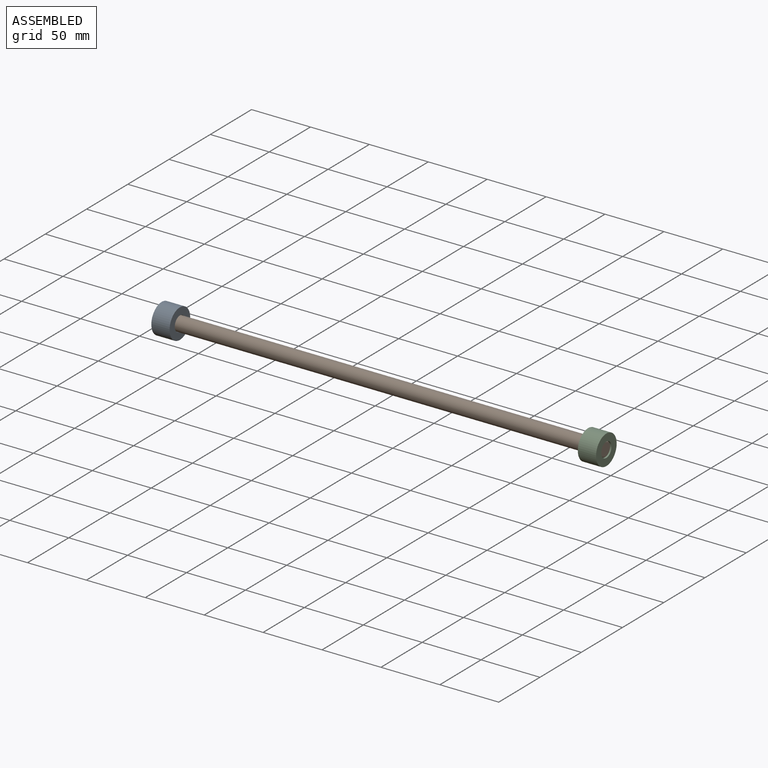
[diagram: assembled view]
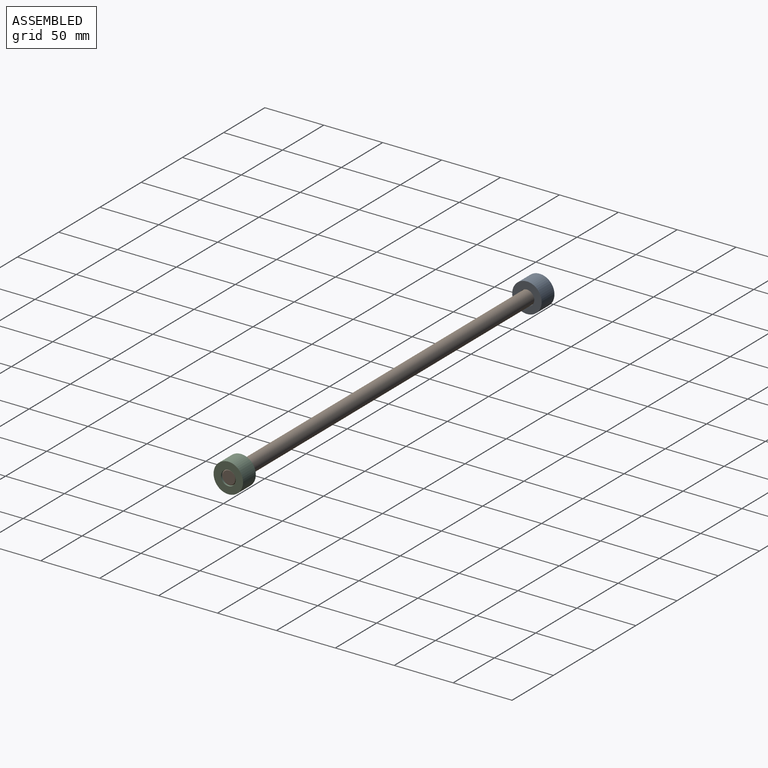
[diagram: assembled view, second angle]
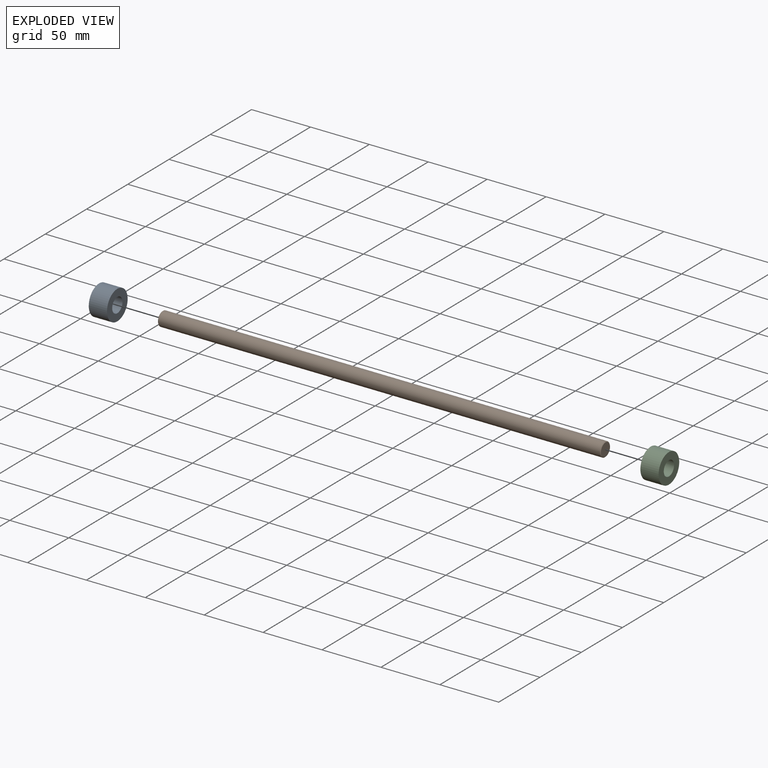
[diagram: exploded view]
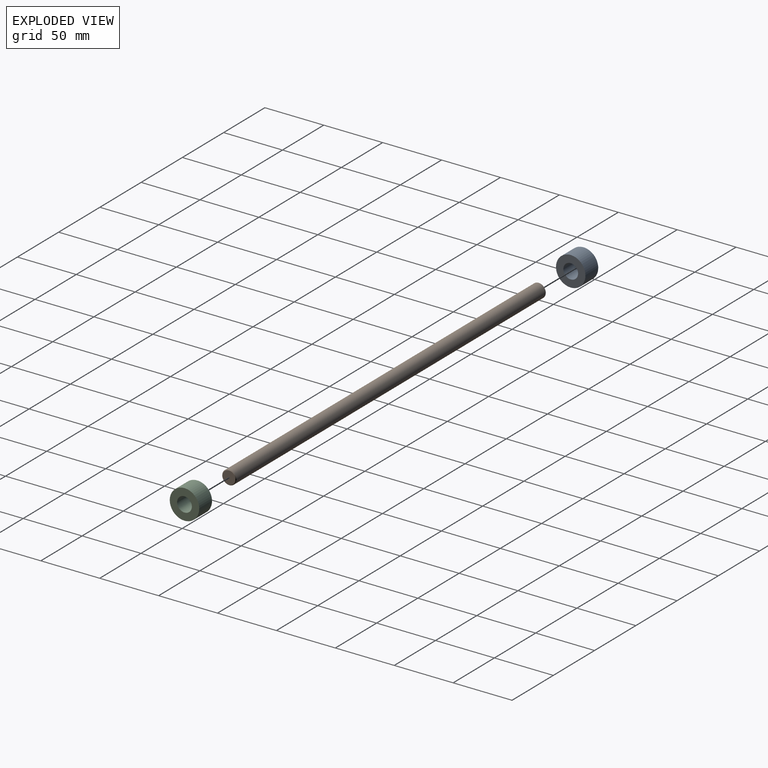
[diagram: exploded view, second angle]
ASSEMBLY  parts=3 mates=2
PART A: 4 faces, bbox 15.5x25x25 mm
  f0: cylinder r=6.25mm len=15.5mm, axis (1,0,0), area 608.7mm2, adj f2,f3
  f1: cylinder r=12.5mm len=25mm, axis (1,0,0), area 1217.4mm2, adj f2,f3
  f2: plane 25x25mm, normal (-1,0,0), area 368.2mm2, adj f0,f1
  f3: plane 25x25mm, normal (1,0,0), area 368.2mm2, adj f0,f1
PART B: 5 faces, bbox 376x12x12 mm
  f0: cylinder r=6mm len=375mm, axis (-1,0,0), area 14137.2mm2, adj f3,f4
  f1: plane 11x11mm, normal (1,0,0), area 95mm2, adj f4
  f2: plane 11x11mm, normal (-1,0,0), area 95mm2, adj f3
  f3: cone r=6mm half-angle=45deg, axis (1,0,0), area 25.5mm2, adj f0,f2
  f4: cone r=5.5mm half-angle=45deg, axis (-1,0,0), area 25.5mm2, adj f0,f1
PART C: same geometry as A
PLACE A t=(-216.43,51.03,-42.17)mm
PLACE B t=(-231.18,51.03,-42.17)mm
PLACE C t=(145.57,51.03,-42.17)mm
MATE revolute A.f1 <-> B.f0  axis (-1,0,0) through (-231.93,51.03,-42.17)mm
MATE revolute C.f1 <-> B.f0  axis (1,0,0) through (145.57,51.03,-42.17)mm
